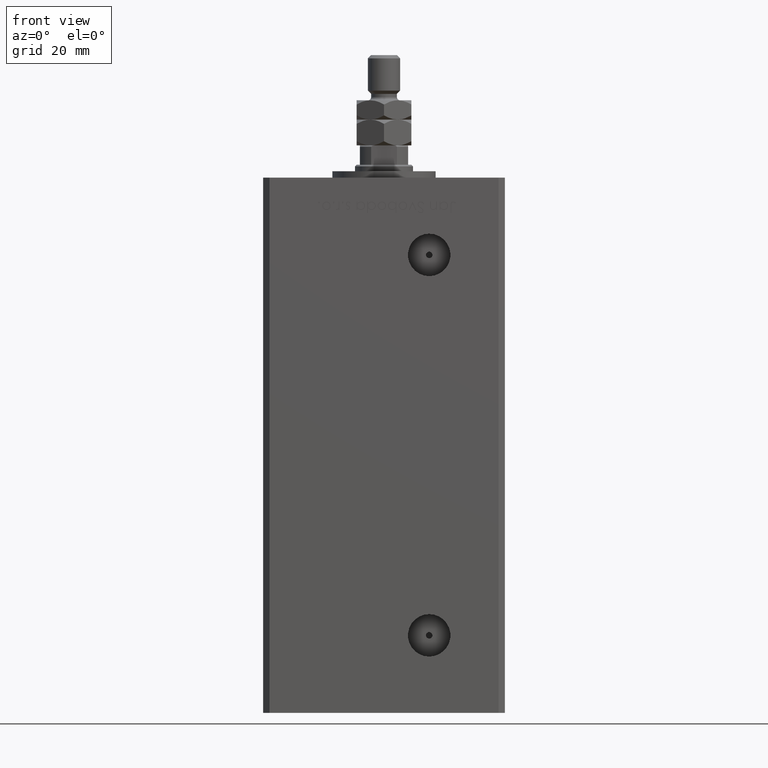
[diagram: clean part render]
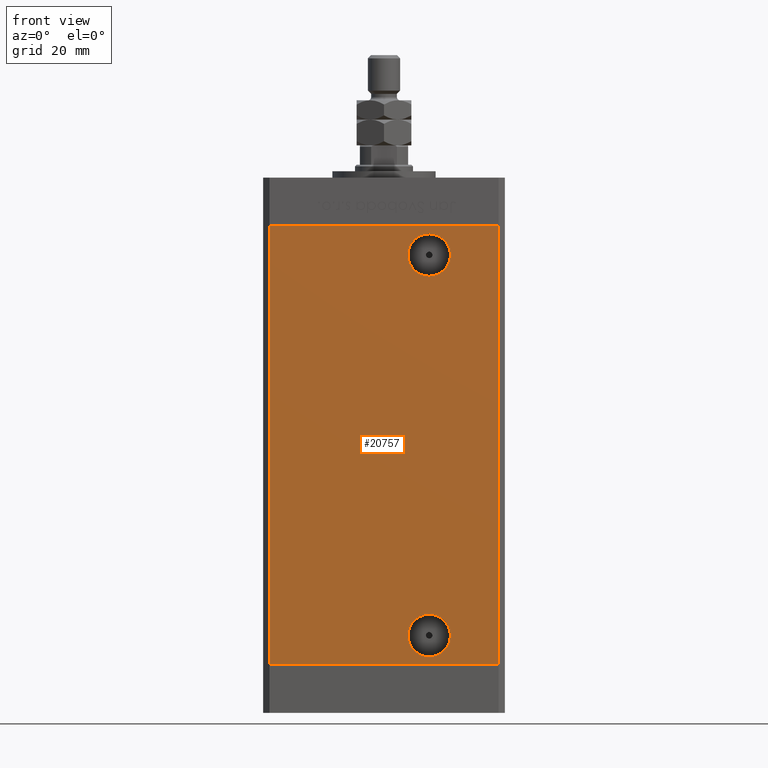
[diagram: same view with one face highlighted and labeled with its STEP entity id]
A machine part, front view. The second image highlights one B-rep face of the part: STEP entity #20757.
In plain terms, the highlighted planar face has unit normal (0, 1, 0).
Its self-contained STEP definition (entity closure, byte-faithful):
#26 = CIRCLE ( 'NONE', #26918, 6.580000000000002736 ) ;
#285 = DIRECTION ( 'NONE',  ( -0.000000000000000000, 1.000000000000000000, -0.000000000000000000 ) ) ;
#335 = EDGE_LOOP ( 'NONE', ( #8539, #47856 ) ) ;
#777 = VERTEX_POINT ( 'NONE', #11863 ) ;
#1108 = CARTESIAN_POINT ( 'NONE',  ( 13.99999999999999112, -32.50000000000000000, 133.5800000000000125 ) ) ;
#1404 = CIRCLE ( 'NONE', #13562, 6.579999999999998295 ) ;
#1696 = CARTESIAN_POINT ( 'NONE',  ( 35.49999999999999289, -32.50000000000000000, 136.0000000000000000 ) ) ;
#3177 = PLANE ( 'NONE',  #18618 ) ;
#3845 = LINE ( 'NONE', #16325, #10393 ) ;
#5516 = VERTEX_POINT ( 'NONE', #24459 ) ;
#6245 = ORIENTED_EDGE ( 'NONE', *, *, #37426, .T. ) ;
#6567 = LINE ( 'NONE', #1696, #48255 ) ;
#6828 = VECTOR ( 'NONE', #40749, 1000.000000000000000 ) ;
#8539 = ORIENTED_EDGE ( 'NONE', *, *, #26350, .F. ) ;
#9051 = ORIENTED_EDGE ( 'NONE', *, *, #25437, .F. ) ;
#9712 = ORIENTED_EDGE ( 'NONE', *, *, #41418, .T. ) ;
#9981 = CARTESIAN_POINT ( 'NONE',  ( 13.99999999999999112, -32.50000000000000000, 15.58000000000000718 ) ) ;
#10393 = VECTOR ( 'NONE', #11723, 1000.000000000000000 ) ;
#11723 = DIRECTION ( 'NONE',  ( 1.000000000000000000, 0.000000000000000000, 0.000000000000000000 ) ) ;
#11863 = CARTESIAN_POINT ( 'NONE',  ( 13.99999999999999112, -32.50000000000000000, 2.420000000000009699 ) ) ;
#12581 = CARTESIAN_POINT ( 'NONE',  ( 35.49999999999999289, -32.50000000000000000, 136.0000000000000000 ) ) ;
#12759 = CARTESIAN_POINT ( 'NONE',  ( -35.49999999999999289, -32.50000000000000000, 136.0000000000000000 ) ) ;
#13562 = AXIS2_PLACEMENT_3D ( 'NONE', #28819, #41605, #44621 ) ;
#14864 = FACE_BOUND ( 'NONE', #335, .T. ) ;
#15024 = EDGE_LOOP ( 'NONE', ( #27048, #9712 ) ) ;
#15873 = VERTEX_POINT ( 'NONE', #25196 ) ;
#16203 = DIRECTION ( 'NONE',  ( -0.000000000000000000, 1.000000000000000000, -0.000000000000000000 ) ) ;
#16325 = CARTESIAN_POINT ( 'NONE',  ( -35.49999999999999289, -32.50000000000000000, 0.000000000000000000 ) ) ;
#18618 = AXIS2_PLACEMENT_3D ( 'NONE', #19742, #39893, #52924 ) ;
#19092 = ORIENTED_EDGE ( 'NONE', *, *, #23609, .F. ) ;
#19742 = CARTESIAN_POINT ( 'NONE',  ( -35.49999999999999289, -32.50000000000000000, 136.0000000000000000 ) ) ;
#20021 = DIRECTION ( 'NONE',  ( 0.000000000000000000, 0.000000000000000000, -1.000000000000000000 ) ) ;
#20757 = ADVANCED_FACE ( 'NONE', ( #14864, #40427, #27371 ), #3177, .F. ) ;
#21086 = VERTEX_POINT ( 'NONE', #1108 ) ;
#21145 = DIRECTION ( 'NONE',  ( 1.000000000000000000, 0.000000000000000000, 0.000000000000000000 ) ) ;
#21708 = VERTEX_POINT ( 'NONE', #12759 ) ;
#22427 = CARTESIAN_POINT ( 'NONE',  ( 35.49999999999999289, -32.50000000000000000, 0.000000000000000000 ) ) ;
#23609 = EDGE_CURVE ( 'NONE', #21708, #48309, #28766, .T. ) ;
#24459 = CARTESIAN_POINT ( 'NONE',  ( 13.99999999999999112, -32.50000000000000000, 120.4200000000000017 ) ) ;
#24470 = DIRECTION ( 'NONE',  ( 0.000000000000000000, 0.000000000000000000, -1.000000000000000000 ) ) ;
#25196 = CARTESIAN_POINT ( 'NONE',  ( -35.49999999999999289, -32.50000000000000000, 0.000000000000000000 ) ) ;
#25217 = CARTESIAN_POINT ( 'NONE',  ( -35.49999999999999289, -32.50000000000000000, 136.0000000000000000 ) ) ;
#25437 = EDGE_CURVE ( 'NONE', #48309, #25736, #6567, .T. ) ;
#25736 = VERTEX_POINT ( 'NONE', #22427 ) ;
#26350 = EDGE_CURVE ( 'NONE', #777, #46978, #1404, .T. ) ;
#26681 = DIRECTION ( 'NONE',  ( -0.000000000000000000, -0.000000000000000000, -1.000000000000000000 ) ) ;
#26918 = AXIS2_PLACEMENT_3D ( 'NONE', #36599, #16203, #20021 ) ;
#27048 = ORIENTED_EDGE ( 'NONE', *, *, #49219, .T. ) ;
#27371 = FACE_BOUND ( 'NONE', #15024, .T. ) ;
#28000 = DIRECTION ( 'NONE',  ( 0.000000000000000000, -1.000000000000000000, 0.000000000000000000 ) ) ;
#28280 = ORIENTED_EDGE ( 'NONE', *, *, #40724, .T. ) ;
#28766 = LINE ( 'NONE', #36923, #48218 ) ;
#28819 = CARTESIAN_POINT ( 'NONE',  ( 13.99999999999999112, -32.50000000000000000, 9.000000000000007105 ) ) ;
#31155 = CIRCLE ( 'NONE', #38103, 6.579999999999998295 ) ;
#31968 = AXIS2_PLACEMENT_3D ( 'NONE', #46213, #285, #53110 ) ;
#33705 = CIRCLE ( 'NONE', #31968, 6.580000000000002736 ) ;
#36599 = CARTESIAN_POINT ( 'NONE',  ( 13.99999999999999112, -32.50000000000000000, 127.0000000000000000 ) ) ;
#36923 = CARTESIAN_POINT ( 'NONE',  ( -35.49999999999999289, -32.50000000000000000, 136.0000000000000000 ) ) ;
#37426 = EDGE_CURVE ( 'NONE', #21708, #15873, #41288, .T. ) ;
#38103 = AXIS2_PLACEMENT_3D ( 'NONE', #41588, #28000, #24470 ) ;
#39893 = DIRECTION ( 'NONE',  ( 0.000000000000000000, 1.000000000000000000, 0.000000000000000000 ) ) ;
#40427 = FACE_OUTER_BOUND ( 'NONE', #44442, .T. ) ;
#40724 = EDGE_CURVE ( 'NONE', #15873, #25736, #3845, .T. ) ;
#40749 = DIRECTION ( 'NONE',  ( -0.000000000000000000, -0.000000000000000000, -1.000000000000000000 ) ) ;
#41288 = LINE ( 'NONE', #25217, #6828 ) ;
#41418 = EDGE_CURVE ( 'NONE', #21086, #5516, #26, .T. ) ;
#41588 = CARTESIAN_POINT ( 'NONE',  ( 13.99999999999999112, -32.50000000000000000, 9.000000000000007105 ) ) ;
#41605 = DIRECTION ( 'NONE',  ( 0.000000000000000000, -1.000000000000000000, 0.000000000000000000 ) ) ;
#44442 = EDGE_LOOP ( 'NONE', ( #28280, #9051, #19092, #6245 ) ) ;
#44621 = DIRECTION ( 'NONE',  ( 0.000000000000000000, 0.000000000000000000, -1.000000000000000000 ) ) ;
#46213 = CARTESIAN_POINT ( 'NONE',  ( 13.99999999999999112, -32.50000000000000000, 127.0000000000000000 ) ) ;
#46978 = VERTEX_POINT ( 'NONE', #9981 ) ;
#47856 = ORIENTED_EDGE ( 'NONE', *, *, #51433, .F. ) ;
#48218 = VECTOR ( 'NONE', #21145, 1000.000000000000000 ) ;
#48255 = VECTOR ( 'NONE', #26681, 1000.000000000000000 ) ;
#48309 = VERTEX_POINT ( 'NONE', #12581 ) ;
#49219 = EDGE_CURVE ( 'NONE', #5516, #21086, #33705, .T. ) ;
#51433 = EDGE_CURVE ( 'NONE', #46978, #777, #31155, .T. ) ;
#52924 = DIRECTION ( 'NONE',  ( 0.000000000000000000, -0.000000000000000000, 1.000000000000000000 ) ) ;
#53110 = DIRECTION ( 'NONE',  ( 0.000000000000000000, 0.000000000000000000, -1.000000000000000000 ) ) ;